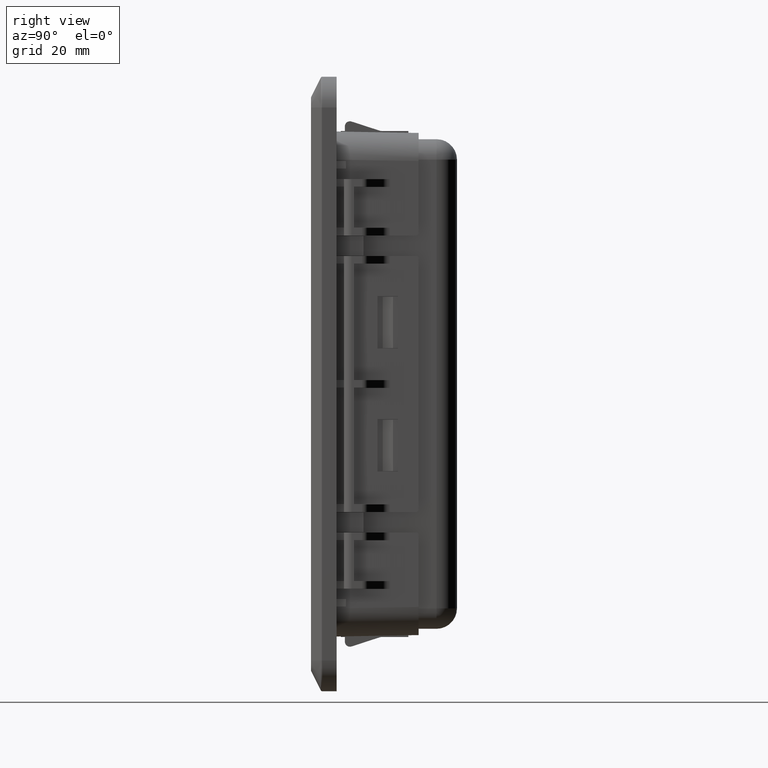
[diagram: clean part render]
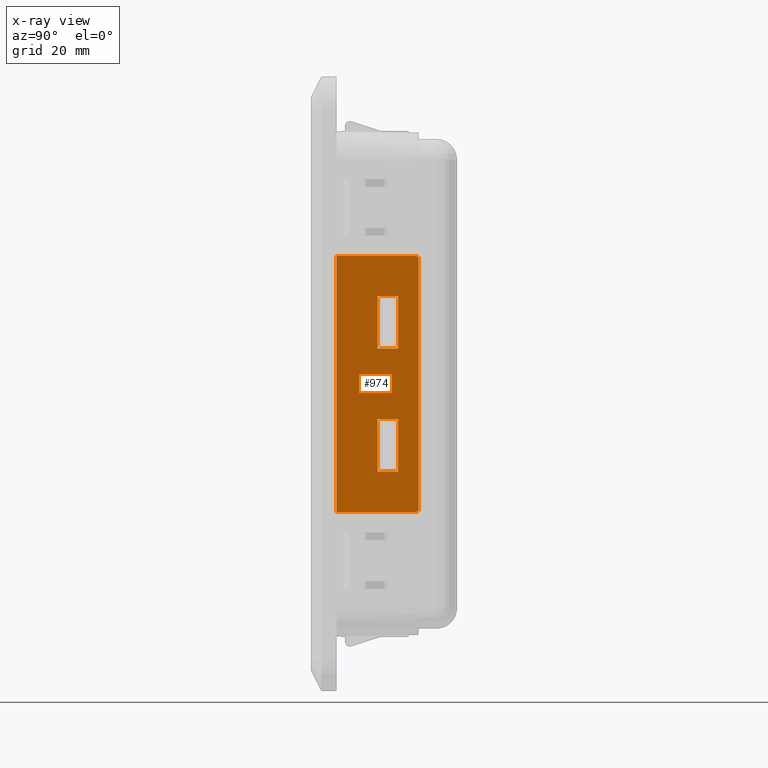
[diagram: x-ray — body ghosted, one internal face saturated and labeled with its STEP entity id]
A machine part, right view, then the same camera in x-ray: the body is ghosted and one INTERNAL B-rep face — a face not visible from any outside direction — is saturated and labeled: STEP entity #974.
In plain terms, the highlighted planar face has unit normal (0.9998, -0.0175, -0).
Its self-contained STEP definition (entity closure, byte-faithful):
#974=ADVANCED_FACE('',(#10387,#10388,#10389),#10386,.F.);
#10386=PLANE('',#18667);
#10387=FACE_OUTER_BOUND('',#18668,.T.);
#10388=FACE_BOUND('',#18669,.T.);
#10389=FACE_BOUND('',#18670,.T.);
#18664=CARTESIAN_POINT('',(2.92720718966E+001,-1.60000000001E+000,-3.00000000001E+001));
#18665=DIRECTION('',(9.99847695156E-001,-1.74524064373E-002,-1.75003560705E-014));
#18666=DIRECTION('',(1.74524064373E-002,9.99847695156E-001,0.00000000000E+000));
#18667=AXIS2_PLACEMENT_3D('',#18664,#18665,#18666);
#18668=EDGE_LOOP('',(#23248,#23249,#23250,#23251,#23252,#23253));
#18669=EDGE_LOOP('',(#23254,#23255,#23256,#23257,#23258,#23259));
#18670=EDGE_LOOP('',(#23260,#23261,#23262,#23263,#23264,#23265));
#23248=ORIENTED_EDGE('',*,*,#25274,.T.);
#23249=ORIENTED_EDGE('',*,*,#24960,.F.);
#23250=ORIENTED_EDGE('',*,*,#25529,.T.);
#23251=ORIENTED_EDGE('',*,*,#25080,.F.);
#23252=ORIENTED_EDGE('',*,*,#25530,.T.);
#23253=ORIENTED_EDGE('',*,*,#24928,.T.);
#23254=ORIENTED_EDGE('',*,*,#24910,.T.);
#23255=ORIENTED_EDGE('',*,*,#24899,.T.);
#23256=ORIENTED_EDGE('',*,*,#25453,.T.);
#23257=ORIENTED_EDGE('',*,*,#24895,.T.);
#23258=ORIENTED_EDGE('',*,*,#24905,.T.);
#23259=ORIENTED_EDGE('',*,*,#24908,.T.);
#23260=ORIENTED_EDGE('',*,*,#24926,.T.);
#23261=ORIENTED_EDGE('',*,*,#24914,.T.);
#23262=ORIENTED_EDGE('',*,*,#24917,.T.);
#23263=ORIENTED_EDGE('',*,*,#24920,.T.);
#23264=ORIENTED_EDGE('',*,*,#25436,.T.);
#23265=ORIENTED_EDGE('',*,*,#24923,.T.);
#24895=EDGE_CURVE('',#34454,#34455,#34456,.T.);
#24899=EDGE_CURVE('',#34483,#34476,#34484,.T.);
#24905=EDGE_CURVE('',#34455,#34517,#34524,.T.);
#24908=EDGE_CURVE('',#34517,#34537,#34544,.T.);
#24910=EDGE_CURVE('',#34537,#34483,#34556,.T.);
#24914=EDGE_CURVE('',#34563,#34577,#34584,.T.);
#24917=EDGE_CURVE('',#34577,#34597,#34604,.T.);
#24920=EDGE_CURVE('',#34597,#34618,#34625,.T.);
#24923=EDGE_CURVE('',#34645,#34638,#34646,.T.);
#24926=EDGE_CURVE('',#34638,#34563,#34664,.T.);
#24928=EDGE_CURVE('',#34677,#34670,#34678,.T.);
#24960=EDGE_CURVE('',#34896,#34897,#34898,.T.);
#25080=EDGE_CURVE('',#35696,#35697,#35698,.T.);
#25274=EDGE_CURVE('',#34670,#34897,#36993,.T.);
#25436=EDGE_CURVE('',#34618,#34645,#38060,.T.);
#25453=EDGE_CURVE('',#34476,#34454,#38166,.T.);
#25529=EDGE_CURVE('',#34896,#35697,#38645,.T.);
#25530=EDGE_CURVE('',#35696,#34677,#38651,.T.);
#34454=VERTEX_POINT('',#46825);
#34455=VERTEX_POINT('',#46826);
#34456=LINE('',#46827,#46828);
#34476=VERTEX_POINT('',#46838);
#34483=VERTEX_POINT('',#46842);
#34484=LINE('',#46843,#46844);
#34517=VERTEX_POINT('',#46861);
#34524=LINE('',#46865,#46866);
#34537=VERTEX_POINT('',#46872);
#34544=LINE('',#46876,#46877);
#34556=LINE('',#46882,#46883);
#34563=VERTEX_POINT('',#46886);
#34577=VERTEX_POINT('',#46894);
#34584=LINE('',#46898,#46899);
#34597=VERTEX_POINT('',#46905);
#34604=LINE('',#46909,#46910);
#34618=VERTEX_POINT('',#46917);
#34625=LINE('',#46921,#46922);
#34638=VERTEX_POINT('',#46928);
#34645=VERTEX_POINT('',#46932);
#34646=LINE('',#46933,#46934);
#34664=LINE('',#46942,#46943);
#34670=VERTEX_POINT('',#46945);
#34677=VERTEX_POINT('',#46949);
#34678=LINE('',#46950,#46951);
#34896=VERTEX_POINT('',#47081);
#34897=VERTEX_POINT('',#47082);
#34898=LINE('',#47083,#47084);
#35696=VERTEX_POINT('',#47528);
#35697=VERTEX_POINT('',#47529);
#35698=LINE('',#47530,#47531);
#36993=LINE('',#48352,#48353);
#38060=LINE('',#48944,#48945);
#38166=LINE('',#48999,#49000);
#38645=(BOUNDED_CURVE() B_SPLINE_CURVE(2,(#49268,#49269,#49270),.UNSPECIFIED.,.F.,.F.) B_SPLINE_CURVE_WITH_KNOTS((3,3),(-1.57079632680E+000,1.00275343584E-012),.UNSPECIFIED.) CURVE() GEOMETRIC_REPRESENTATION_ITEM() RATIONAL_B_SPLINE_CURVE((1.00000000000E+000,7.07106781186E-001,1.00000000000E+000)) REPRESENTATION_ITEM('') );
#38651=(BOUNDED_CURVE() B_SPLINE_CURVE(2,(#49271,#49272,#49273),.UNSPECIFIED.,.F.,.F.) B_SPLINE_CURVE_WITH_KNOTS((3,3),(-3.14159265359E+000,-1.57079632679E+000),.UNSPECIFIED.) CURVE() GEOMETRIC_REPRESENTATION_ITEM() RATIONAL_B_SPLINE_CURVE((1.00000000000E+000,7.07106781187E-001,1.00000000000E+000)) REPRESENTATION_ITEM('') );
#46825=CARTESIAN_POINT('',(2.95094607796E+001,1.20000000000E+001,-7.00000000000E+000));
#46826=CARTESIAN_POINT('',(2.95094607796E+001,1.20000000000E+001,-6.89999999950E+000));
#46827=CARTESIAN_POINT('',(2.95094607796E+001,1.20000000000E+001,-7.00000000000E+000));
#46828=VECTOR('',#46829,1.00000000503E-001);
#46829=DIRECTION('',(-3.55271366094E-014,-1.58095757912E-012,1.00000000000E+000));
#46838=CARTESIAN_POINT('',(2.95094607796E+001,1.20000000000E+001,-1.70000000000E+001));
#46842=CARTESIAN_POINT('',(2.95094607796E+001,1.20000000000E+001,-1.70999999995E+001));
#46843=CARTESIAN_POINT('',(2.95094607796E+001,1.20000000000E+001,-1.70999999995E+001));
#46844=VECTOR('',#46845,9.99999994974E-002);
#46845=DIRECTION('',(-3.55271369666E-014,-1.56319402653E-012,1.00000000000E+000));
#46861=CARTESIAN_POINT('',(2.94396405199E+001,7.99999999996E+000,-6.89999999893E+000));
#46865=CARTESIAN_POINT('',(2.95094607796E+001,1.20000000000E+001,-6.89999999950E+000));
#46866=VECTOR('',#46867,4.00060931218E+000);
#46867=DIRECTION('',(-1.74524064373E-002,-9.99847695156E-001,-1.54874724632E-012));
#46872=CARTESIAN_POINT('',(2.94396405199E+001,7.99999999998E+000,-1.70999999995E+001));
#46876=CARTESIAN_POINT('',(2.94396405199E+001,7.99999999996E+000,-6.89999999893E+000));
#46877=VECTOR('',#46878,1.02000000006E+001);
#46878=DIRECTION('',(1.01008526156E-014,1.56876690279E-012,-1.00000000000E+000));
#46882=CARTESIAN_POINT('',(2.94396405199E+001,7.99999999998E+000,-1.70999999995E+001));
#46883=VECTOR('',#46884,4.00060931218E+000);
#46884=DIRECTION('',(1.74524064373E-002,9.99847695156E-001,1.57716462698E-012));
#46886=CARTESIAN_POINT('',(2.94396405199E+001,7.99999999995E+000,1.71000000001E+001));
#46894=CARTESIAN_POINT('',(2.94396405199E+001,7.99999999995E+000,6.90000000008E+000));
#46898=CARTESIAN_POINT('',(2.94396405199E+001,7.99999999995E+000,1.71000000001E+001));
#46899=VECTOR('',#46900,1.02000000000E+001);
#46900=DIRECTION('',(-1.77635683940E-014,0.00000000000E+000,-1.00000000000E+000));
#46905=CARTESIAN_POINT('',(2.95094607796E+001,1.20000000000E+001,6.89999999951E+000));
#46909=CARTESIAN_POINT('',(2.94396405199E+001,7.99999999995E+000,6.90000000008E+000));
#46910=VECTOR('',#46911,4.00060931218E+000);
#46911=DIRECTION('',(1.74524064373E-002,9.99847695156E-001,2.84173806664E-014));
#46917=CARTESIAN_POINT('',(2.95094607796E+001,1.20000000000E+001,7.00000000017E+000));
#46921=CARTESIAN_POINT('',(2.95094607796E+001,1.20000000000E+001,6.89999999951E+000));
#46922=VECTOR('',#46923,1.00000000660E-001);
#46923=DIRECTION('',(3.55271365534E-014,0.00000000000E+000,1.00000000000E+000));
#46928=CARTESIAN_POINT('',(2.95094607796E+001,1.20000000000E+001,1.71000000001E+001));
#46932=CARTESIAN_POINT('',(2.95094607796E+001,1.20000000000E+001,1.70000000002E+001));
#46933=CARTESIAN_POINT('',(2.95094607796E+001,1.20000000000E+001,1.70000000002E+001));
#46934=VECTOR('',#46935,9.99999999110E-002);
#46935=DIRECTION('',(3.55271368196E-014,0.00000000000E+000,1.00000000000E+000));
#46942=CARTESIAN_POINT('',(2.95094607796E+001,1.20000000000E+001,1.71000000001E+001));
#46943=VECTOR('',#46944,4.00060931218E+000);
#46944=DIRECTION('',(-1.74524064373E-002,-9.99847695156E-001,2.13130354998E-014));
#46945=CARTESIAN_POINT('',(2.93000000005E+001,-1.19938781129E-011,-2.50000000000E+001));
#46949=CARTESIAN_POINT('',(2.95705535069E+001,1.55000000000E+001,-2.50000000001E+001));
#46950=CARTESIAN_POINT('',(2.95705535069E+001,1.55000000000E+001,-2.50000000001E+001));
#46951=VECTOR('',#46952,1.55023610846E+001);
#46952=DIRECTION('',(-1.74524064373E-002,-9.99847695156E-001,0.00000000000E+000));
#47081=CARTESIAN_POINT('',(2.95705535069E+001,1.55000000000E+001,2.50000000001E+001));
#47082=CARTESIAN_POINT('',(2.93000000005E+001,-1.19938781129E-011,2.50000000000E+001));
#47083=CARTESIAN_POINT('',(2.95705535069E+001,1.55000000000E+001,2.50000000001E+001));
#47084=VECTOR('',#47085,1.55023610846E+001);
#47085=DIRECTION('',(-1.74524064373E-002,-9.99847695156E-001,0.00000000000E+000));
#47528=CARTESIAN_POINT('',(2.95792810393E+001,1.60000000000E+001,-2.45000000001E+001));
#47529=CARTESIAN_POINT('',(2.95792810393E+001,1.60000000000E+001,2.45000000001E+001));
#47530=CARTESIAN_POINT('',(2.95792810393E+001,1.60000000000E+001,-2.45000000001E+001));
#47531=VECTOR('',#47532,4.90000000002E+001);
#47532=DIRECTION('',(1.75460553116E-014,0.00000000000E+000,1.00000000000E+000));
#48352=CARTESIAN_POINT('',(2.93000000005E+001,-1.19938781129E-011,-2.50000000000E+001));
#48353=VECTOR('',#48354,5.00000000000E+001);
#48354=DIRECTION('',(1.75504055733E-014,0.00000000000E+000,1.00000000000E+000));
#48944=CARTESIAN_POINT('',(2.95094607796E+001,1.20000000000E+001,7.00000000017E+000));
#48945=VECTOR('',#48946,1.00000000000E+001);
#48946=DIRECTION('',(1.74082970261E-014,0.00000000000E+000,1.00000000000E+000));
#48999=CARTESIAN_POINT('',(2.95094607796E+001,1.20000000000E+001,-1.70000000000E+001));
#49000=VECTOR('',#49001,1.00000000000E+001);
#49001=DIRECTION('',(-9.59232693276E-015,-1.56870072487E-012,1.00000000000E+000));
#49268=CARTESIAN_POINT('',(2.95705535069E+001,1.55000000000E+001,2.50000000001E+001));
#49269=CARTESIAN_POINT('',(2.95792810393E+001,1.60000000000E+001,2.50000000001E+001));
#49270=CARTESIAN_POINT('',(2.95792810393E+001,1.60000000000E+001,2.45000000001E+001));
#49271=CARTESIAN_POINT('',(2.95792810393E+001,1.60000000000E+001,-2.45000000001E+001));
#49272=CARTESIAN_POINT('',(2.95792810393E+001,1.60000000000E+001,-2.50000000001E+001));
#49273=CARTESIAN_POINT('',(2.95705535069E+001,1.55000000000E+001,-2.50000000001E+001));